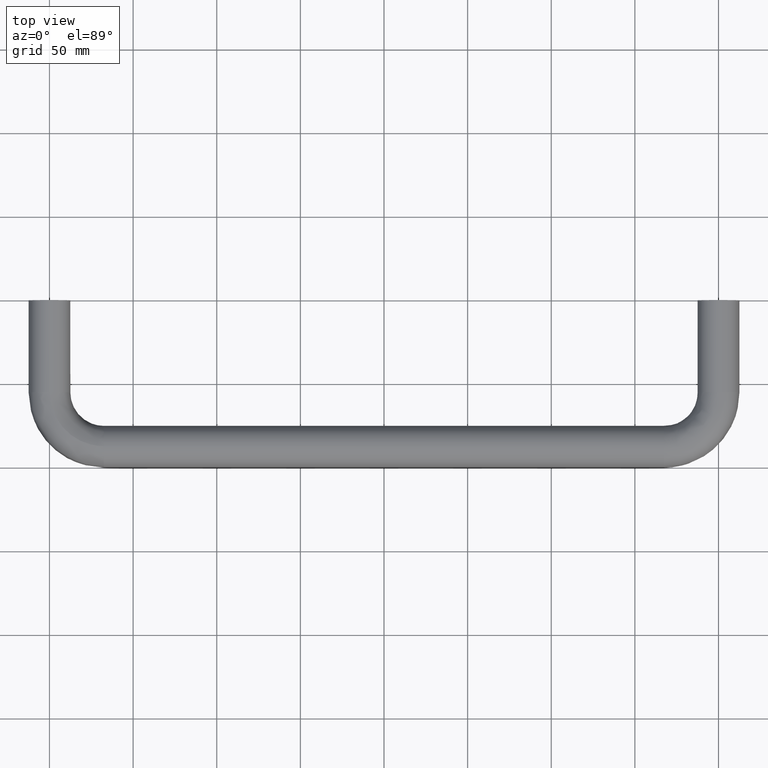
[diagram: clean part render]
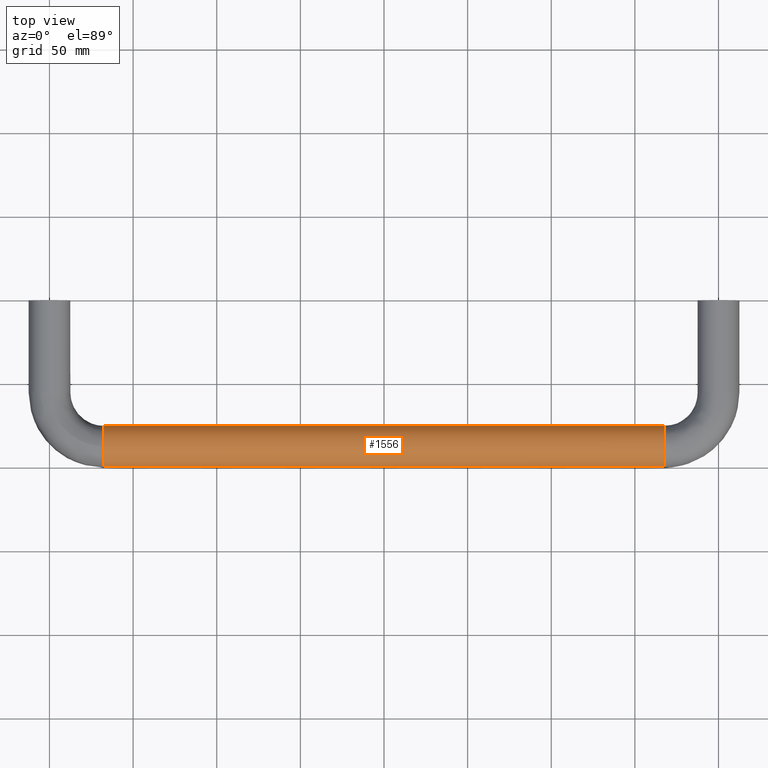
[diagram: same view with one face highlighted and labeled with its STEP entity id]
A machine part, top view. The second image highlights one B-rep face of the part: STEP entity #1556.
In plain terms, the highlighted face is a freeform B-spline surface patch.
Its self-contained STEP definition (entity closure, byte-faithful):
#1360=CARTESIAN_POINT('',(24.124999997582421,-98.936217568948393,-5.046080430955922));
#1361=CARTESIAN_POINT('',(24.124999997582432,-96.546033125377221,-10.463090663077280));
#1362=CARTESIAN_POINT('',(24.124999997582432,-90.840479700978207,-12.045380665107791));
#1363=CARTESIAN_POINT('',(24.124999997582432,-78.795099035870422,-15.385860366085989));
#1364=CARTESIAN_POINT('',(24.124999997582432,-75.454619334892215,-3.340479700978208));
#1365=CARTESIAN_POINT('',(24.124999997582432,-72.114139633914007,8.704900964129578));
#1366=CARTESIAN_POINT('',(24.124999997582432,-84.159520299021793,12.045380665107791));
#1367=CARTESIAN_POINT('',(24.124999997582432,-96.204900964129578,15.385860366085989));
#1368=CARTESIAN_POINT('',(24.124999997582432,-99.545380665107785,3.340479700978208));
#1369=CARTESIAN_POINT('',(376.084375000060560,-98.936217568948393,-5.046080430955922));
#1370=CARTESIAN_POINT('',(376.084375000060450,-96.546033125377221,-10.463090663077280));
#1371=CARTESIAN_POINT('',(376.084375000060500,-90.840479700978207,-12.045380665107791));
#1372=CARTESIAN_POINT('',(376.084375000060500,-78.795099035870422,-15.385860366085989));
#1373=CARTESIAN_POINT('',(376.084375000060500,-75.454619334892215,-3.340479700978208));
#1374=CARTESIAN_POINT('',(376.084375000060500,-72.114139633914007,8.704900964129578));
#1375=CARTESIAN_POINT('',(376.084375000060500,-84.159520299021793,12.045380665107791));
#1376=CARTESIAN_POINT('',(376.084375000060500,-96.204900964129578,15.385860366085989));
#1377=CARTESIAN_POINT('',(376.084375000060500,-99.545380665107785,3.340479700978208));
#1385=(BOUNDED_SURFACE()B_SPLINE_SURFACE(2,1,((#1360,#1369),(#1361,#1370),(#1362,#1371),(#1363,#1372),(#1364,#1373),(#1365,#1374),(#1366,#1375),(#1367,#1376),(#1368,#1377)),.UNSPECIFIED.,.F.,.F.,.U.)B_SPLINE_SURFACE_WITH_KNOTS((3,2,2,2,3),(2,2),(0.0,11.597979746446670,32.308657865101431,53.019335983756200,73.730014102410962),(0.0,351.959375002478110),.UNSPECIFIED.)GEOMETRIC_REPRESENTATION_ITEM()RATIONAL_B_SPLINE_SURFACE(((0.855662221768731,0.855662221768731),(0.835979797464467,0.835979797464467),(1.0,1.0),(0.707106781186548,0.707106781186548),(1.0,1.0),(0.707106781186548,0.707106781186548),(1.0,1.0),(0.707106781186548,0.707106781186548),(1.0,1.0)))REPRESENTATION_ITEM('')SURFACE());
#1386=CARTESIAN_POINT('',(367.499999999861190,-98.936217568713488,-5.046080431050863));
#1387=VERTEX_POINT('',#1386);
#1388=CARTESIAN_POINT('',(367.499999999025990,-92.536330449781843,-11.440514656281859));
#1389=VERTEX_POINT('',#1388);
#1390=CARTESIAN_POINT('',(367.499999999861250,-98.936217568713474,-5.046080431050863));
#1391=CARTESIAN_POINT('',(367.499999999605450,-96.977393142822223,-9.485475048348869));
#1392=CARTESIAN_POINT('',(367.499999999026100,-92.536330449781843,-11.440514656281859));
#1400=(BOUNDED_CURVE()B_SPLINE_CURVE(2,(#1390,#1391,#1392),.UNSPECIFIED.,.F.,.U.)B_SPLINE_CURVE_WITH_KNOTS((3,3),(0.318548117651567,0.431585009769677),.UNSPECIFIED.)CURVE()GEOMETRIC_REPRESENTATION_ITEM()RATIONAL_B_SPLINE_CURVE((0.883422078886727,0.823614264587506,0.883563120420803))REPRESENTATION_ITEM(''));
#1401=EDGE_CURVE('',#1387,#1389,#1400,.T.);
#1402=ORIENTED_EDGE('',*,*,#1401,.F.);
#1403=CARTESIAN_POINT('',(32.500000000000000,-98.936217568845137,-5.046080431189905));
#1404=VERTEX_POINT('',#1403);
#1405=CARTESIAN_POINT('',(32.500000000000000,-98.936217568845137,-5.046080431189905));
#1406=CARTESIAN_POINT('',(367.499999999861190,-98.936217568713488,-5.046080431050863));
#1407=QUASI_UNIFORM_CURVE('',1,(#1405,#1406),.UNSPECIFIED.,.F.,.U.);
#1408=EDGE_CURVE('',#1404,#1387,#1407,.T.);
#1409=ORIENTED_EDGE('',*,*,#1408,.F.);
#1410=CARTESIAN_POINT('',(32.500000000000000,-87.500000000000000,-12.500000000000000));
#1411=VERTEX_POINT('',#1410);
#1412=CARTESIAN_POINT('',(32.500000000000007,-98.936217568845137,-5.046080431189905));
#1413=CARTESIAN_POINT('',(32.499999999999993,-95.647273698418402,-12.499999999999996));
#1414=CARTESIAN_POINT('',(32.500000000000000,-87.500000000000000,-12.500000000000000));
#1422=(BOUNDED_CURVE()B_SPLINE_CURVE(2,(#1412,#1413,#1414),.UNSPECIFIED.,.F.,.U.)B_SPLINE_CURVE_WITH_KNOTS((3,3),(0.318548117658244,0.500000000000000),.UNSPECIFIED.)CURVE()GEOMETRIC_REPRESENTATION_ITEM()RATIONAL_B_SPLINE_CURVE((0.883422078879661,0.787415896484653,1.0))REPRESENTATION_ITEM(''));
#1423=EDGE_CURVE('',#1404,#1411,#1422,.T.);
#1424=ORIENTED_EDGE('',*,*,#1423,.T.);
#1425=CARTESIAN_POINT('',(32.499999999245048,-75.030429077097210,-0.871665646160868));
#1426=VERTEX_POINT('',#1425);
#1427=CARTESIAN_POINT('',(32.500000000000000,-87.500000000000000,-12.500000000000000));
#1428=CARTESIAN_POINT('',(32.500000000000007,-75.843289411918192,-12.499999999999998));
#1429=CARTESIAN_POINT('',(32.499999999245048,-75.030429077097210,-0.871665646160868));
#1437=(BOUNDED_CURVE()B_SPLINE_CURVE(2,(#1427,#1428,#1429),.UNSPECIFIED.,.F.,.U.)B_SPLINE_CURVE_WITH_KNOTS((3,3),(0.500000000000000,0.737833686494646),.UNSPECIFIED.)CURVE()GEOMETRIC_REPRESENTATION_ITEM()RATIONAL_B_SPLINE_CURVE((1.0,0.721360504081254,0.972879876301430))REPRESENTATION_ITEM(''));
#1438=EDGE_CURVE('',#1411,#1426,#1437,.T.);
#1439=ORIENTED_EDGE('',*,*,#1438,.T.);
#1440=CARTESIAN_POINT('',(32.499999997641403,-87.342924498158155,12.499013052506230));
#1441=VERTEX_POINT('',#1440);
#1442=CARTESIAN_POINT('',(32.499999999245048,-75.030429077097210,-0.871665646160868));
#1443=CARTESIAN_POINT('',(32.500000000000000,-75.0,-0.436363949907113));
#1444=CARTESIAN_POINT('',(32.500000000000000,-75.0,0.0));
#1445=CARTESIAN_POINT('',(32.500000000000000,-75.0,12.343899117322861));
#1446=CARTESIAN_POINT('',(32.499999997641403,-87.342924498158155,12.499013052506234));
#1454=(BOUNDED_CURVE()B_SPLINE_CURVE(2,(#1442,#1443,#1444,#1445,#1446),.UNSPECIFIED.,.F.,.U.)B_SPLINE_CURVE_WITH_KNOTS((3,2,3),(0.737833686494645,0.750000000000000,0.997784295828864),.UNSPECIFIED.)CURVE()GEOMETRIC_REPRESENTATION_ITEM()RATIONAL_B_SPLINE_CURVE((0.972879876301428,0.985746277105292,1.0,0.709702640093038,0.994854295430274))REPRESENTATION_ITEM(''));
#1455=EDGE_CURVE('',#1426,#1441,#1454,.T.);
#1456=ORIENTED_EDGE('',*,*,#1455,.T.);
#1457=CARTESIAN_POINT('',(32.500000000000000,-87.500000000000000,12.500000000000000));
#1458=VERTEX_POINT('',#1457);
#1459=CARTESIAN_POINT('',(32.499999997641410,-87.342924498158155,12.499013052506234));
#1460=CARTESIAN_POINT('',(32.500000000000007,-87.421459146801041,12.500000000000000));
#1461=CARTESIAN_POINT('',(32.500000000000000,-87.500000000000000,12.500000000000000));
#1469=(BOUNDED_CURVE()B_SPLINE_CURVE(2,(#1459,#1460,#1461),.UNSPECIFIED.,.F.,.U.)B_SPLINE_CURVE_WITH_KNOTS((3,3),(0.997784295828865,1.0),.UNSPECIFIED.)CURVE()GEOMETRIC_REPRESENTATION_ITEM()RATIONAL_B_SPLINE_CURVE((0.994854295430277,0.997404141093511,1.0))REPRESENTATION_ITEM(''));
#1470=EDGE_CURVE('',#1441,#1458,#1469,.T.);
#1471=ORIENTED_EDGE('',*,*,#1470,.T.);
#1472=CARTESIAN_POINT('',(32.500000000000000,-99.545380664979035,3.340479701442447));
#1473=VERTEX_POINT('',#1472);
#1474=CARTESIAN_POINT('',(32.500000000000000,-87.500000000000000,12.500000000000000));
#1475=CARTESIAN_POINT('',(32.500000000000000,-97.005220873614405,12.499999999999998));
#1476=CARTESIAN_POINT('',(32.500000000000007,-99.545380664979035,3.340479701442447));
#1484=(BOUNDED_CURVE()B_SPLINE_CURVE(2,(#1474,#1475,#1476),.UNSPECIFIED.,.F.,.U.)B_SPLINE_CURVE_WITH_KNOTS((3,3),(0.0,0.204451173353575),.UNSPECIFIED.)CURVE()GEOMETRIC_REPRESENTATION_ITEM()RATIONAL_B_SPLINE_CURVE((1.0,0.760470550985137,0.912717717200867))REPRESENTATION_ITEM(''));
#1485=EDGE_CURVE('',#1458,#1473,#1484,.T.);
#1486=ORIENTED_EDGE('',*,*,#1485,.T.);
#1487=CARTESIAN_POINT('',(367.500000000000000,-99.545380664979035,3.340479701442447));
#1488=VERTEX_POINT('',#1487);
#1489=CARTESIAN_POINT('',(32.500000000000000,-99.545380664979035,3.340479701442447));
#1490=CARTESIAN_POINT('',(367.500000000000000,-99.545380664979035,3.340479701442447));
#1491=QUASI_UNIFORM_CURVE('',1,(#1489,#1490),.UNSPECIFIED.,.F.,.U.);
#1492=EDGE_CURVE('',#1473,#1488,#1491,.T.);
#1493=ORIENTED_EDGE('',*,*,#1492,.T.);
#1494=CARTESIAN_POINT('',(367.500000000000000,-87.500000000000000,12.500000000000000));
#1495=VERTEX_POINT('',#1494);
#1496=CARTESIAN_POINT('',(367.500000000000000,-87.500000000000000,12.500000000000000));
#1497=CARTESIAN_POINT('',(367.499999999999940,-97.005220873614405,12.499999999999998));
#1498=CARTESIAN_POINT('',(367.500000000000000,-99.545380664979035,3.340479701442447));
#1506=(BOUNDED_CURVE()B_SPLINE_CURVE(2,(#1496,#1497,#1498),.UNSPECIFIED.,.F.,.U.)B_SPLINE_CURVE_WITH_KNOTS((3,3),(0.0,0.204451173353575),.UNSPECIFIED.)CURVE()GEOMETRIC_REPRESENTATION_ITEM()RATIONAL_B_SPLINE_CURVE((1.0,0.760470550985137,0.912717717200867))REPRESENTATION_ITEM(''));
#1507=EDGE_CURVE('',#1495,#1488,#1506,.T.);
#1508=ORIENTED_EDGE('',*,*,#1507,.F.);
#1509=CARTESIAN_POINT('',(367.499999998566010,-76.059485343306193,-5.036330448846069));
#1510=VERTEX_POINT('',#1509);
#1511=CARTESIAN_POINT('',(367.499999998566010,-76.059485343306193,-5.036330448846069));
#1512=CARTESIAN_POINT('',(367.500000000000000,-75.0,-2.629606403473759));
#1513=CARTESIAN_POINT('',(367.500000000000000,-75.0,0.0));
#1514=CARTESIAN_POINT('',(367.500000000000000,-75.0,12.499999999999998));
#1515=CARTESIAN_POINT('',(367.500000000000000,-87.500000000000000,12.500000000000000));
#1523=(BOUNDED_CURVE()B_SPLINE_CURVE(2,(#1511,#1512,#1513,#1514,#1515),.UNSPECIFIED.,.F.,.U.)B_SPLINE_CURVE_WITH_KNOTS((3,2,3),(0.681585009795229,0.750000000000000,1.0),.UNSPECIFIED.)CURVE()GEOMETRIC_REPRESENTATION_ITEM()RATIONAL_B_SPLINE_CURVE((0.883563120447906,0.919846853215335,1.0,0.707106781186547,1.0))REPRESENTATION_ITEM(''));
#1524=EDGE_CURVE('',#1510,#1495,#1523,.T.);
#1525=ORIENTED_EDGE('',*,*,#1524,.F.);
#1526=CARTESIAN_POINT('',(367.500000000000000,-87.500000000000000,-12.500000000000000));
#1527=VERTEX_POINT('',#1526);
#1528=CARTESIAN_POINT('',(367.500000000000000,-87.500000000000000,-12.500000000000000));
#1529=CARTESIAN_POINT('',(367.500000000000110,-79.345133530489619,-12.499999999999998));
#1530=CARTESIAN_POINT('',(367.499999998565900,-76.059485343306193,-5.036330448846069));
#1538=(BOUNDED_CURVE()B_SPLINE_CURVE(2,(#1528,#1529,#1530),.UNSPECIFIED.,.F.,.U.)B_SPLINE_CURVE_WITH_KNOTS((3,3),(0.500000000000000,0.681585009795229),.UNSPECIFIED.)CURVE()GEOMETRIC_REPRESENTATION_ITEM()RATIONAL_B_SPLINE_CURVE((1.0,0.787259927971213,0.883563120447906))REPRESENTATION_ITEM(''));
#1539=EDGE_CURVE('',#1527,#1510,#1538,.T.);
#1540=ORIENTED_EDGE('',*,*,#1539,.F.);
#1541=CARTESIAN_POINT('',(367.499999999026040,-92.536330449781843,-11.440514656281868));
#1542=CARTESIAN_POINT('',(367.499999999999940,-90.129606404541448,-12.500000000000005));
#1543=CARTESIAN_POINT('',(367.500000000000000,-87.500000000000000,-12.500000000000000));
#1551=(BOUNDED_CURVE()B_SPLINE_CURVE(2,(#1541,#1542,#1543),.UNSPECIFIED.,.F.,.U.)B_SPLINE_CURVE_WITH_KNOTS((3,3),(0.431585009769677,0.500000000000000),.UNSPECIFIED.)CURVE()GEOMETRIC_REPRESENTATION_ITEM()RATIONAL_B_SPLINE_CURVE((0.883563120420803,0.919846853185400,1.0))REPRESENTATION_ITEM(''));
#1552=EDGE_CURVE('',#1389,#1527,#1551,.T.);
#1553=ORIENTED_EDGE('',*,*,#1552,.F.);
#1554=EDGE_LOOP('',(#1402,#1409,#1424,#1439,#1456,#1471,#1486,#1493,#1508,#1525,#1540,#1553));
#1555=FACE_OUTER_BOUND('',#1554,.T.);
#1556=ADVANCED_FACE('',(#1555),#1385,.T.);